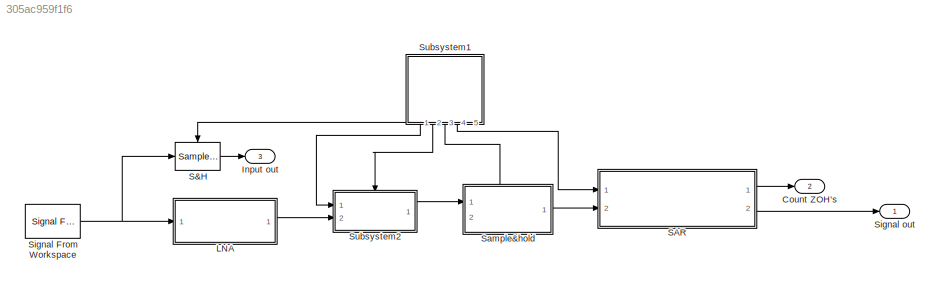
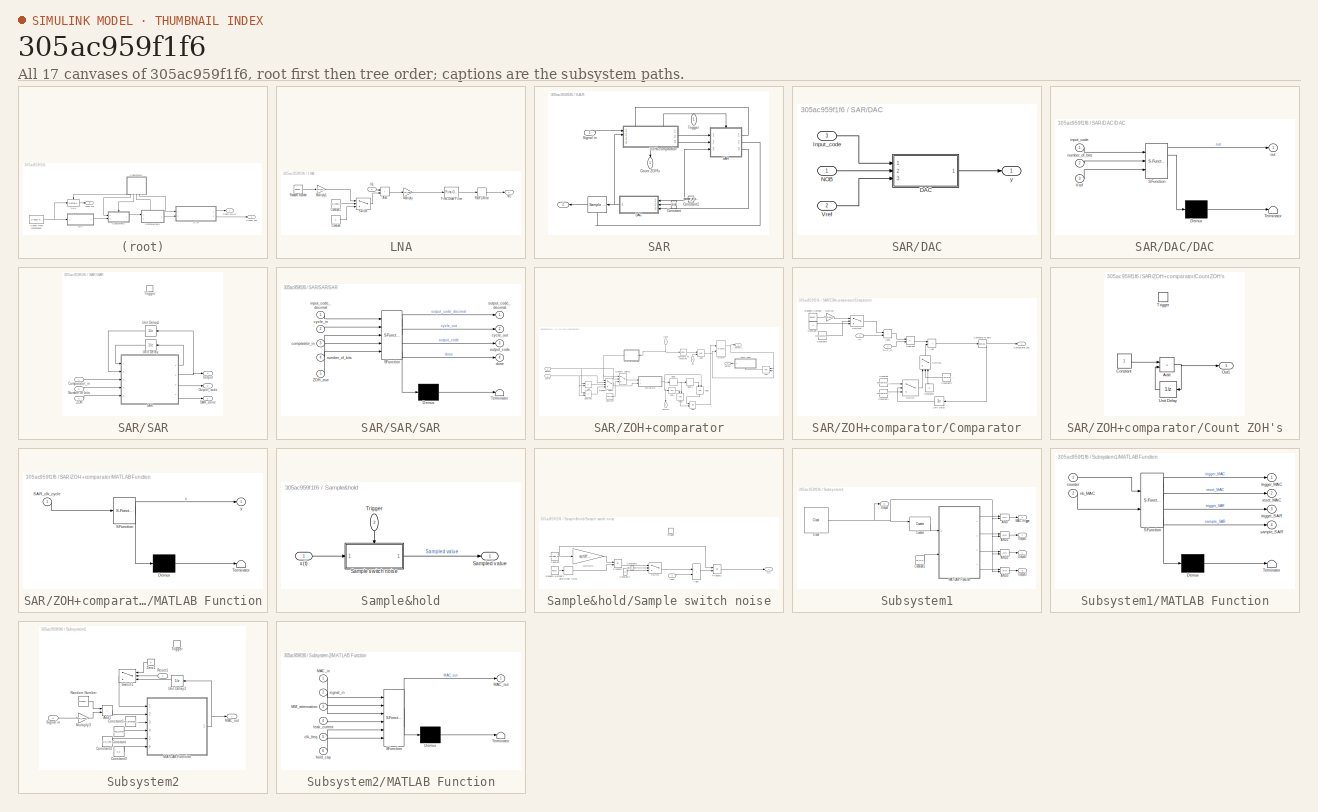
[diagram: thumbnail index - all 17 canvases of the model, root first then tree order]
MODEL slx_305ac959f1f6
KIND model
CONFIG AbsTol = auto
CONFIG EnableMultiTasking = off
CONFIG FixedStep = auto
CONFIG MaxStep = auto
CONFIG MinStep = auto
CONFIG RelTol = 1e-3
CONFIG SampleTimeConstraint = Unconstrained
CONFIG SolverName = VariableStepAuto
CONFIG StartTime = 0.0
CONFIG StopTime = 1
BLOCK [Outport] Count ZOH's
  Port = 2
BLOCK [Outport] Input out
  NameLocation = top
  Port = 3
BLOCK [SubSystem] LNA
  Ports = [1, 1]
  RequestExecContextInheritance = off
BLOCK [Sum] LNA/Add
  IconShape = rectangular
  Ports = [2, 1]
BLOCK [Constant] LNA/Constant
  Value = 0
BLOCK [Constant] LNA/Constant1
  Value = LNA_noise_on
BLOCK [Reference] LNA/First-Order Filter  REF=spsFirstOrderFilterLib/First-Order
Filter
  Ports = [1, 1]
  SourceBlock = spsFirstOrderFilterLib/First-Order\nFilter
  SourceProductBaseCode = PS
  SourceType = First-Order Filter
BLOCK [Inport] LNA/In1
BLOCK [Gain] LNA/Multiply
  Gain = LNA_gain
BLOCK [Gain] LNA/Multiply1
  Gain = LNA_input_referred_noise
BLOCK [RandomNumber] LNA/Random Number
  SampleTime = clk_period*(number_of_bits+1)
  Seed = noise_seed+8
BLOCK [RateLimiter] LNA/Rate Limiter
  FallingSlewLimit = -LNA_SR
  RisingSlewLimit = LNA_SR
  SampleTimeMode = inherited
BLOCK [Switch] LNA/Switch
  Criteria = u2 > Threshold
  InputSameDT = off
  SaturateOnIntegerOverflow = off
BLOCK [Outport] LNA/x(t)
BLOCK [Reference] S&H  REF=dspsigops/Sample
and Hold
  Ports = [1, 1, 0, 1]
  SourceBlock = dspsigops/Sample\nand Hold
  SourceProductName = DSP System Toolbox
  SourceType = Sample and Hold
BLOCK [SubSystem] SAR
  Ports = [2, 2]
  RequestExecContextInheritance = off
BLOCK [Outport] SAR/ 
  Port = 2
BLOCK [Reference] SAR/             REF=dspsigops/Sample
and Hold
  NameLocation = top
  Ports = [1, 1, 0, 1]
  SourceBlock = dspsigops/Sample\nand Hold
  SourceProductName = DSP System Toolbox
  SourceType = Sample and Hold
BLOCK [Constant] SAR/Constant
  NameLocation = top
  Value = Vref
BLOCK [Constant] SAR/Constant1
  NameLocation = top
  Value = number_of_bits
BLOCK [Outport] SAR/Count ZOH's
  NameLocation = left
BLOCK [SubSystem] SAR/DAC
  Ports = [3, 1]
  RequestExecContextInheritance = off
  TreatAsAtomicUnit = on
BLOCK [SubSystem] SAR/DAC/DAC
  ErrorFcn = Stateflow.Translate.translate
  PermitHierarchicalResolution = ExplicitOnly
  Ports = [3, 1]
  RequestExecContextInheritance = off
  SFBlockType = MATLAB Function
  TreatAsAtomicUnit = on
BLOCK [Demux] SAR/DAC/DAC/ Demux 
  Outputs = 1
  Ports = [1, 1]
BLOCK [S-Function] SAR/DAC/DAC/ SFunction 
  EnableBusSupport = on
  FunctionName = sf_sfun
  PortCounts = [3 2]
  Ports = [3, 2]
  SFcnIsStateOwnerBlock = off
  SFunctionDeploymentMode = off
  Tag = Stateflow S-Function 2
BLOCK [Terminator] SAR/DAC/DAC/ Terminator 
BLOCK [Inport] SAR/DAC/DAC/Vref
  Port = 3
BLOCK [Inport] SAR/DAC/DAC/input_code
BLOCK [Inport] SAR/DAC/DAC/number_of_bits
  Port = 2
BLOCK [Outport] SAR/DAC/DAC/out
BLOCK [Inport] SAR/DAC/Input_code
  Port = 3
BLOCK [Inport] SAR/DAC/NOB
BLOCK [Inport] SAR/DAC/Vref
  Port = 2
BLOCK [Outport] SAR/DAC/y
BLOCK [SubSystem] SAR/SAR
  Ports = [3, 3, 0, 1]
  RequestExecContextInheritance = off
  TreatAsAtomicUnit = on
BLOCK [Inport] SAR/SAR/Comparator_in
  LatchByDelayingOutsideSignal = on
BLOCK [Inport] SAR/SAR/Number of bits
  Port = 3
BLOCK [Outport] SAR/SAR/Output
BLOCK [Outport] SAR/SAR/Output_code
  InitialOutput = zeros(number_of_bits, 1)
  Port = 3
  VarSizeSig = Yes
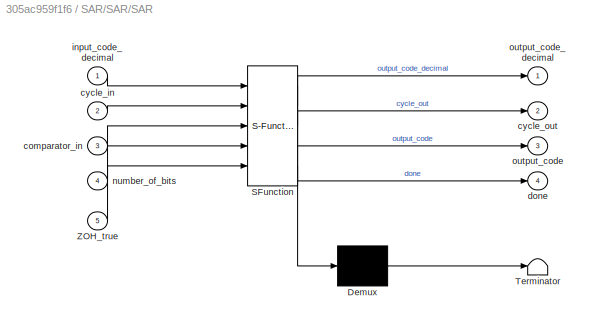
BLOCK [SubSystem] SAR/SAR/SAR
  ErrorFcn = Stateflow.Translate.translate
  PermitHierarchicalResolution = ExplicitOnly
  Ports = [5, 4]
  RequestExecContextInheritance = off
  SFBlockType = MATLAB Function
  TreatAsAtomicUnit = on
BLOCK [Demux] SAR/SAR/SAR/ Demux 
  Outputs = 1
  Ports = [1, 1]
BLOCK [S-Function] SAR/SAR/SAR/ SFunction 
  EnableBusSupport = on
  FunctionName = sf_sfun
  PortCounts = [5 5]
  Ports = [5, 5]
  SFcnIsStateOwnerBlock = off
  SFunctionDeploymentMode = off
  Tag = Stateflow S-Function 3
BLOCK [Terminator] SAR/SAR/SAR/ Terminator 
BLOCK [Inport] SAR/SAR/SAR/ZOH_true
  Port = 5
BLOCK [Inport] SAR/SAR/SAR/comparator_in
  Port = 3
BLOCK [Inport] SAR/SAR/SAR/cycle_in
  Port = 2
BLOCK [Outport] SAR/SAR/SAR/cycle_out
  Port = 2
BLOCK [Outport] SAR/SAR/SAR/done
  Port = 4
BLOCK [Inport] SAR/SAR/SAR/input_code_decimal
BLOCK [Inport] SAR/SAR/SAR/number_of_bits
  Port = 4
BLOCK [Outport] SAR/SAR/SAR/output_code
  Port = 3
BLOCK [Outport] SAR/SAR/SAR/output_code_decimal
BLOCK [Outport] SAR/SAR/SAR_done
  InitialOutput = 0
  Port = 2
BLOCK [TriggerPort] SAR/SAR/Trigger
  Ports = []
  StatesWhenEnabling = held
  VariantControl = Variant
BLOCK [UnitDelay] SAR/SAR/Unit Delay
  HasFrameUpgradeWarning = on
  SampleTime = -1
BLOCK [UnitDelay] SAR/SAR/Unit Delay1
  HasFrameUpgradeWarning = on
  NameLocation = top
  SampleTime = -1
BLOCK [Inport] SAR/SAR/ZOH
  LatchByDelayingOutsideSignal = on
  Port = 2
BLOCK [Inport] SAR/Signal in
  Port = 2
BLOCK [Inport] SAR/Trigger
  NameLocation = right
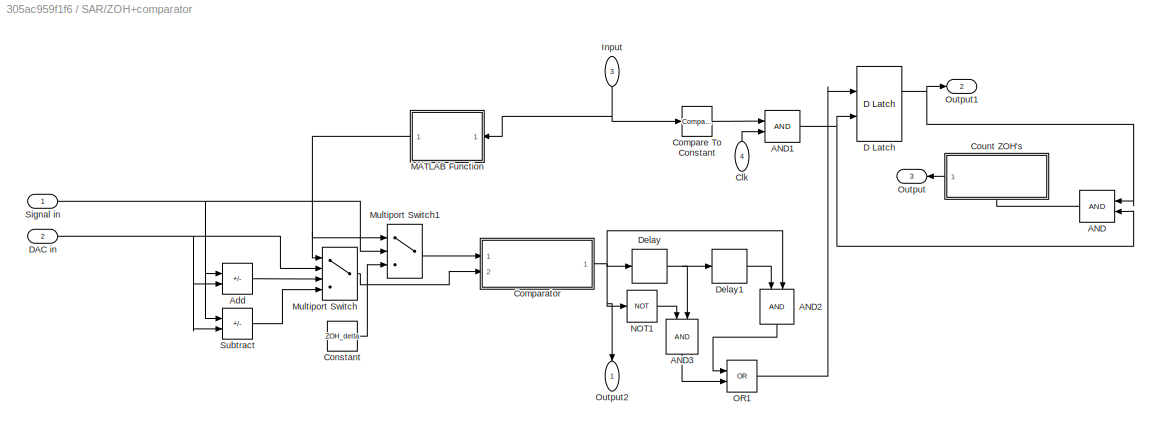
BLOCK [SubSystem] SAR/ZOH+comparator
  PortSchema = {"entries":[{"content":{"sides":[{"content":{"connectorIds":["In1","In2"]},"type":"ConnectorPlacement.EquallySpacedRectSide","uuid":"7512c97b-848f-4506-b4e4-df4323ddef76"},{"content":{"connectorIds":["Out1","Out2"],"side":"RIGHT"},"type":"ConnectorPlacement.EquallySpacedRectSide","uuid":"173ab639-376f-4392-8113-9f10a64ef5ba"},{"content":{"connectorIds":["In3","In4"],"side":"TOP"},"type":"Connector...<+558ch>
  Ports = [4, 3]
  RequestExecContextInheritance = off
BLOCK [Logic] SAR/ZOH+comparator/AND
  AllPortsSameDT = off
  IconShape = distinctive
  OutDataTypeStr = boolean
  Ports = [2, 1]
BLOCK [Logic] SAR/ZOH+comparator/AND1
  AllPortsSameDT = off
  IconShape = distinctive
  OutDataTypeStr = boolean
  Ports = [2, 1]
BLOCK [Logic] SAR/ZOH+comparator/AND2
  AllPortsSameDT = off
  IconShape = distinctive
  NameLocation = left
  OutDataTypeStr = boolean
  Ports = [2, 1]
BLOCK [Logic] SAR/ZOH+comparator/AND3
  AllPortsSameDT = off
  IconShape = distinctive
  NameLocation = left
  OutDataTypeStr = boolean
  Ports = [2, 1]
BLOCK [Sum] SAR/ZOH+comparator/Add
  IconShape = rectangular
  Inputs = +-
  Ports = [2, 1]
BLOCK [Inport] SAR/ZOH+comparator/Clk
  NameLocation = left
  Port = 4
BLOCK [SubSystem] SAR/ZOH+comparator/Comparator
  Ports = [2, 1]
  RequestExecContextInheritance = off
  TreatAsAtomicUnit = on
BLOCK [Sum] SAR/ZOH+comparator/Comparator/Add
  IconShape = rectangular
  Ports = [2, 1]
BLOCK [Sum] SAR/ZOH+comparator/Comparator/Add1
  IconShape = rectangular
  Ports = [2, 1]
BLOCK [Outport] SAR/ZOH+comparator/Comparator/Comparator_out
BLOCK [Reference] SAR/ZOH+comparator/Comparator/Compare To Zero  REF=simulink/Logic and Bit
Operations/Compare
To Zero
  Ports = [1, 1]
  SourceBlock = simulink/Logic and Bit\nOperations/Compare\nTo Zero
  SourceProductBaseCode = SL
  SourceType = Compare To Zero
BLOCK [Constant] SAR/ZOH+comparator/Comparator/Constant
  Value = comparator_high_offset
BLOCK [Constant] SAR/ZOH+comparator/Comparator/Constant1
  Value = comparator_low_offset
BLOCK [Constant] SAR/ZOH+comparator/Comparator/Constant2
  NameLocation = right
  Value = 0
BLOCK [Constant] SAR/ZOH+comparator/Comparator/Constant3
  Value = comparator_offset_on
BLOCK [Constant] SAR/ZOH+comparator/Comparator/Constant4
  Value = 0
BLOCK [Constant] SAR/ZOH+comparator/Comparator/Constant5
  Value = comparator_noise_on
BLOCK [Inport] SAR/ZOH+comparator/Comparator/DAC_in
  Port = 2
BLOCK [Gain] SAR/ZOH+comparator/Comparator/Multiply
  Gain = comparator_noise_rms
BLOCK [RandomNumber] SAR/ZOH+comparator/Comparator/Random Number
  SampleTime = 1/clk_freq
BLOCK [Sum] SAR/ZOH+comparator/Comparator/Subtract
  IconShape = rectangular
  Inputs = +-
  Ports = [2, 1]
BLOCK [Switch] SAR/ZOH+comparator/Comparator/Switch
  Criteria = u2 > Threshold
  InputSameDT = off
  SaturateOnIntegerOverflow = off
BLOCK [Switch] SAR/ZOH+comparator/Comparator/Switch1
  Criteria = u2 > Threshold
  InputSameDT = off
  NameLocation = right
  SaturateOnIntegerOverflow = off
BLOCK [Switch] SAR/ZOH+comparator/Comparator/Switch2
  Criteria = u2 > Threshold
  InputSameDT = off
  SaturateOnIntegerOverflow = off
BLOCK [UnitDelay] SAR/ZOH+comparator/Comparator/Unit Delay
  HasFrameUpgradeWarning = on
  SampleTime = -1
BLOCK [Inport] SAR/ZOH+comparator/Comparator/y(t)
BLOCK [Reference] SAR/ZOH+comparator/Compare To Constant  REF=simulink/Logic and Bit
Operations/Compare
To Constant
  Ports = [1, 1]
  SourceBlock = simulink/Logic and Bit\nOperations/Compare\nTo Constant
  SourceProductBaseCode = SL
  SourceType = Compare To Constant
BLOCK [Constant] SAR/ZOH+comparator/Constant
  Value = ZOH_delta
BLOCK [SubSystem] SAR/ZOH+comparator/Count ZOH's
  NameLocation = top
  Ports = [0, 1, 0, 1]
  RequestExecContextInheritance = off
BLOCK [Sum] SAR/ZOH+comparator/Count ZOH's/Add
  AccumDataTypeStr = double
  IconShape = rectangular
  OutDataTypeStr = double
  Ports = [2, 1]
BLOCK [Constant] SAR/ZOH+comparator/Count ZOH's/Constant
BLOCK [Outport] SAR/ZOH+comparator/Count ZOH's/Out1
BLOCK [TriggerPort] SAR/ZOH+comparator/Count ZOH's/Trigger
  PortDimensions = 1
  Ports = []
  StatesWhenEnabling = held
  VariantControl = Variant
BLOCK [UnitDelay] SAR/ZOH+comparator/Count ZOH's/Unit Delay
  HasFrameUpgradeWarning = on
  NameLocation = top
  SampleTime = -1
BLOCK [Reference] SAR/ZOH+comparator/D Latch  REF=simulink_extras/Flip Flops/D Latch
  Ports = [2, 2]
  SourceBlock = simulink_extras/Flip Flops/D Latch
  SourceProductBaseCode = SL
  SourceType = DLatch
BLOCK [Inport] SAR/ZOH+comparator/DAC in
  Port = 2
BLOCK [Delay] SAR/ZOH+comparator/Delay
  InputPortMap = u0
  Ports = [1, 1]
BLOCK [Delay] SAR/ZOH+comparator/Delay1
  InputPortMap = u0
  Ports = [1, 1]
BLOCK [Inport] SAR/ZOH+comparator/Input
  NameLocation = left
  Port = 3
BLOCK [SubSystem] SAR/ZOH+comparator/MATLAB Function
  ErrorFcn = Stateflow.Translate.translate
  NameLocation = top
  PermitHierarchicalResolution = ExplicitOnly
  Ports = [1, 1]
  RequestExecContextInheritance = off
  SFBlockType = MATLAB Function
  TreatAsAtomicUnit = on
BLOCK [Demux] SAR/ZOH+comparator/MATLAB Function/ Demux 
  Outputs = 1
  Ports = [1, 1]
BLOCK [S-Function] SAR/ZOH+comparator/MATLAB Function/ SFunction 
  EnableBusSupport = on
  FunctionName = sf_sfun
  PortCounts = [1 2]
  Ports = [1, 2]
  SFcnIsStateOwnerBlock = off
  SFunctionDeploymentMode = off
  Tag = Stateflow S-Function 1
BLOCK [Terminator] SAR/ZOH+comparator/MATLAB Function/ Terminator 
BLOCK [Inport] SAR/ZOH+comparator/MATLAB Function/SAR_clk_cycle
BLOCK [Outport] SAR/ZOH+comparator/MATLAB Function/y
BLOCK [MultiPortSwitch] SAR/ZOH+comparator/Multiport Switch
  InputSameDT = off
  Ports = [4, 1]
  SaturateOnIntegerOverflow = off
BLOCK [MultiPortSwitch] SAR/ZOH+comparator/Multiport Switch1
  DiagnosticForDefault = None
  InputSameDT = off
  Inputs = 2
  Ports = [3, 1]
  SaturateOnIntegerOverflow = off
BLOCK [Logic] SAR/ZOH+comparator/NOT1
  AllPortsSameDT = off
  IconShape = distinctive
  Operator = NOT
  OutDataTypeStr = boolean
  Ports = [1, 1]
BLOCK [Logic] SAR/ZOH+comparator/OR1
  AllPortsSameDT = off
  IconShape = distinctive
  Operator = OR
  OutDataTypeStr = boolean
  Ports = [2, 1]
BLOCK [Outport] SAR/ZOH+comparator/Output
  NameLocation = top
  Port = 3
BLOCK [Outport] SAR/ZOH+comparator/Output1
  Port = 2
BLOCK [Outport] SAR/ZOH+comparator/Output2
  NameLocation = left
BLOCK [Inport] SAR/ZOH+comparator/Signal in
BLOCK [Sum] SAR/ZOH+comparator/Subtract
  IconShape = rectangular
  Inputs = -+
  Ports = [2, 1]
BLOCK [SubSystem] Sample&hold
  PortSchema = {"entries":[{"content":{"sides":[{"content":{"connectorIds":["In1"]},"type":"ConnectorPlacement.EquallySpacedRectSide","uuid":"7dc7a4da-613e-4b0b-8b13-7686a16d7398"},{"content":{"connectorIds":["Out1"],"side":"RIGHT"},"type":"ConnectorPlacement.EquallySpacedRectSide","uuid":"45e05abc-e512-455b-8082-6639e5b5b38c"},{"content":{"connectorIds":["In2"],"side":"TOP"},"type":"ConnectorPlacement.EquallySp...<+389ch>
  Ports = [2, 1]
  RequestExecContextInheritance = off
BLOCK [SubSystem] Sample&hold/Sample switch noise
  Ports = [1, 1, 0, 1]
  RequestExecContextInheritance = off
  TreatAsAtomicUnit = on
BLOCK [Sum] Sample&hold/Sample switch noise/Add1
  IconShape = rectangular
  Ports = [2, 1]
BLOCK [Constant] Sample&hold/Sample switch noise/Constant
  Value = sampling_gain
BLOCK [Constant] Sample&hold/Sample switch noise/Constant1
  Value = 0
BLOCK [Constant] Sample&hold/Sample switch noise/Constant2
  Value = switch_noise_on
BLOCK [Inport] Sample&hold/Sample switch noise/Input
BLOCK [Gain] Sample&hold/Sample switch noise/Multiply1
  Gain = sqrt(k*T/(sampling_gain*Cf))
  OutDataTypeStr = Inherit: Same as input
BLOCK [Product] Sample&hold/Sample switch noise/Product1
  Ports = [2, 1]
BLOCK [Product] Sample&hold/Sample switch noise/Product2
  Ports = [2, 1]
BLOCK [RandomNumber] Sample&hold/Sample switch noise/Random Number1
  Seed = noise_seed+2
  Variance = switching_noise
BLOCK [Switch] Sample&hold/Sample switch noise/Switch
  Criteria = u2 > Threshold
  InputSameDT = off
  SaturateOnIntegerOverflow = off
BLOCK [TriggerPort] Sample&hold/Sample switch noise/Trigger
  Ports = []
  StatesWhenEnabling = held
  VariantControl = Variant
BLOCK [ZeroOrderHold] Sample&hold/Sample switch noise/Zero-Order Hold1
  SampleTime = -1
BLOCK [Outport] Sample&hold/Sample switch noise/y(t)
BLOCK [Outport] Sample&hold/Sampled value
BLOCK [Inport] Sample&hold/Trigger
  NameLocation = left
  Port = 2
BLOCK [Inport] Sample&hold/x(t)
BLOCK [Reference] Signal From Workspace  REF=dspsrcs4/Signal From
Workspace
  Ports = [0, 1]
  SourceBlock = dspsrcs4/Signal From\nWorkspace
  SourceProductBaseCode = DS
  SourceType = Signal From Workspace
BLOCK [Outport] Signal out
  NameLocation = top
BLOCK [SubSystem] Subsystem1
  NameLocation = left
  PortSchema = {"entries":[{"content":{"sides":[{"content":{"connectorIds":[]},"type":"ConnectorPlacement.EquallySpacedRectSide","uuid":"08b362f4-e51c-4c48-9795-383a666f9ced"},{"content":{"connectorIds":["Out1","Out2","Out3","Out4"],"side":"RIGHT"},"type":"ConnectorPlacement.EquallySpacedRectSide","uuid":"c1079507-a800-4a5f-bf86-70ea93d83d34"},{"content":{"connectorIds":["Out5"],"side":"TOP"},"type":"ConnectorPl...<+406ch>
  Ports = [0, 5]
  RequestExecContextInheritance = off
BLOCK [Logic] Subsystem1/AND
  AllPortsSameDT = off
  IconShape = distinctive
  OutDataTypeStr = boolean
  Ports = [2, 1]
BLOCK [Logic] Subsystem1/AND1
  AllPortsSameDT = off
  IconShape = distinctive
  OutDataTypeStr = boolean
  Ports = [2, 1]
BLOCK [Logic] Subsystem1/AND2
  AllPortsSameDT = off
  IconShape = distinctive
  OutDataTypeStr = boolean
  Ports = [2, 1]
BLOCK [Logic] Subsystem1/AND3
  AllPortsSameDT = off
  IconShape = distinctive
  OutDataTypeStr = boolean
  Ports = [2, 1]
BLOCK [Reference] Subsystem1/Clock  REF=simulink_extras/Flip Flops/Clock
  NameLocation = top
  Ports = [0, 1]
  SourceBlock = simulink_extras/Flip Flops/Clock
  SourceProductBaseCode = SL
  SourceType = Digital clock
BLOCK [Constant] Subsystem1/Constant1
  Value = nb_MAC
BLOCK [Reference] Subsystem1/Counter  REF=dspswit3/Counter
  Ports = [2, 1]
  SourceBlock = dspswit3/Counter
  SourceProductBaseCode = DS
  SourceType = Counter
BLOCK [Outport] Subsystem1/MAC trigger
  Port = 2
BLOCK [SubSystem] Subsystem1/MATLAB Function
  ErrorFcn = Stateflow.Translate.translate
  PermitHierarchicalResolution = ExplicitOnly
  Ports = [2, 4]
  RequestExecContextInheritance = off
  SFBlockType = MATLAB Function
  TreatAsAtomicUnit = on
BLOCK [Demux] Subsystem1/MATLAB Function/ Demux 
  Outputs = 1
  Ports = [1, 1]
BLOCK [S-Function] Subsystem1/MATLAB Function/ SFunction 
  EnableBusSupport = on
  FunctionName = sf_sfun
  PortCounts = [2 5]
  Ports = [2, 5]
  SFcnIsStateOwnerBlock = off
  SFunctionDeploymentMode = off
  Tag = Stateflow S-Function 4
BLOCK [Terminator] Subsystem1/MATLAB Function/ Terminator 
BLOCK [Inport] Subsystem1/MATLAB Function/counter
BLOCK [Inport] Subsystem1/MATLAB Function/nb_MAC
  Port = 2
BLOCK [Outport] Subsystem1/MATLAB Function/reset_MAC
  Port = 2
BLOCK [Outport] Subsystem1/MATLAB Function/sample_SAR
  Port = 4
BLOCK [Outport] Subsystem1/MATLAB Function/trigger_MAC
BLOCK [Outport] Subsystem1/MATLAB Function/trigger_SAR
  Port = 3
BLOCK [Outport] Subsystem1/Output
  Port = 5
BLOCK [Outport] Subsystem1/Output1
BLOCK [Outport] Subsystem1/Output2
  Port = 4
BLOCK [Outport] Subsystem1/Output3
  Port = 3
BLOCK [SubSystem] Subsystem2
  Ports = [2, 1, 0, 1]
  RequestExecContextInheritance = off
BLOCK [Sum] Subsystem2/Add1
  IconShape = rectangular
  Ports = [2, 1]
BLOCK [Constant] Subsystem2/Constant
  Value = leak_current
BLOCK [Constant] Subsystem2/Constant1
  Value = MM_attenuation_coeff
BLOCK [Constant] Subsystem2/Constant2
  Value = clk_freq
BLOCK [Constant] Subsystem2/Constant3
  Value = C2
BLOCK [Outport] Subsystem2/MAC_out
BLOCK [SubSystem] Subsystem2/MATLAB Function
  ErrorFcn = Stateflow.Translate.translate
  PermitHierarchicalResolution = ExplicitOnly
  Ports = [6, 1]
  RequestExecContextInheritance = off
  SFBlockType = MATLAB Function
  TreatAsAtomicUnit = on
BLOCK [Demux] Subsystem2/MATLAB Function/ Demux 
  Outputs = 1
  Ports = [1, 1]
BLOCK [S-Function] Subsystem2/MATLAB Function/ SFunction 
  EnableBusSupport = on
  FunctionName = sf_sfun
  PortCounts = [6 2]
  Ports = [6, 2]
  SFcnIsStateOwnerBlock = off
  SFunctionDeploymentMode = off
  Tag = Stateflow S-Function 5
BLOCK [Terminator] Subsystem2/MATLAB Function/ Terminator 
BLOCK [Inport] Subsystem2/MATLAB Function/MAC_in
BLOCK [Outport] Subsystem2/MATLAB Function/MAC_out
BLOCK [Inport] Subsystem2/MATLAB Function/MM_attenuation
  Port = 3
BLOCK [Inport] Subsystem2/MATLAB Function/clk_freq
  Port = 5
BLOCK [Inport] Subsystem2/MATLAB Function/hold_cap
  Port = 6
BLOCK [Inport] Subsystem2/MATLAB Function/leak_current
  Port = 4
BLOCK [Inport] Subsystem2/MATLAB Function/signal_in
  Port = 2
BLOCK [Gain] Subsystem2/Multiply3
  Gain = MM_incomplete_transfer_coeff
BLOCK [RandomNumber] Subsystem2/Random Number
  Seed = noise_seed+2398
  Variance = MM_sampling_noise
BLOCK [Inport] Subsystem2/Reset1
  NameLocation = top
BLOCK [Inport] Subsystem2/Signal in
  Port = 2
BLOCK [Switch] Subsystem2/Switch1
  Criteria = u2 > Threshold
  InputSameDT = off
  NameLocation = top
  SaturateOnIntegerOverflow = off
BLOCK [TriggerPort] Subsystem2/Trigger
  PortDimensions = 1
  Ports = []
  StatesWhenEnabling = held
  VariantControl = Variant
BLOCK [UnitDelay] Subsystem2/Unit Delay2
  HasFrameUpgradeWarning = on
  InitialCondition = 1
  NameLocation = top
  SampleTime = -1
BLOCK [Constant] Subsystem2/Zero1
  NameLocation = top
  OutDataTypeStr = Inherit: Inherit via back propagation
  Value = 0
LINE LNA/Add:1 -> LNA/Multiply:1
LINE LNA/Constant1:1 -> LNA/Switch:2
LINE LNA/Constant:1 -> LNA/Switch:3
LINE LNA/First-Order Filter:1 -> LNA/Rate Limiter:1
LINE LNA/In1:1 -> LNA/Add:1
LINE LNA/Multiply1:1 -> LNA/Switch:1
LINE LNA/Multiply:1 -> LNA/First-Order Filter:1
LINE LNA/Random Number:1 -> LNA/Multiply1:1
LINE LNA/Rate Limiter:1 -> LNA/x(t):1
LINE LNA/Switch:1 -> LNA/Add:2
LINE LNA:1 -> Subsystem2:2
LINE S&H:1 -> Input out:1
LINE SAR/           :1 -> SAR/ :1
NET SAR/Constant1:1 -> SAR/DAC:1, SAR/SAR:3
LINE SAR/Constant:1 -> SAR/DAC:2
LINE SAR/DAC/DAC:1 -> SAR/DAC/y:1
LINE SAR/DAC/Input_code:1 -> SAR/DAC/DAC:1
LINE SAR/DAC/NOB:1 -> SAR/DAC/DAC:2
LINE SAR/DAC/Vref:1 -> SAR/DAC/DAC:3
NET SAR/DAC:1 -> SAR/           :1, SAR/ZOH+comparator:2
LINE SAR/SAR/Comparator_in:1 -> SAR/SAR/SAR:3
LINE SAR/SAR/Number of bits:1 -> SAR/SAR/SAR:4
LINE SAR/SAR/SAR:1 -> SAR/SAR/Unit Delay:1
NET SAR/SAR/SAR:2 -> SAR/SAR/Output:1, SAR/SAR/Unit Delay1:1
LINE SAR/SAR/SAR:3 -> SAR/SAR/Output_code:1
LINE SAR/SAR/SAR:4 -> SAR/SAR/SAR_done:1
LINE SAR/SAR/Unit Delay1:1 -> SAR/SAR/SAR:2
LINE SAR/SAR/Unit Delay:1 -> SAR/SAR/SAR:1
LINE SAR/SAR/ZOH:1 -> SAR/SAR/SAR:5
LINE SAR/SAR:1 -> SAR/ZOH+comparator:3
LINE SAR/SAR:2 -> SAR/           :trigger
LINE SAR/SAR:3 -> SAR/DAC:3
LINE SAR/Signal in:1 -> SAR/ZOH+comparator:1
NET SAR/Trigger:1 -> SAR/SAR:trigger, SAR/ZOH+comparator:4
NET SAR/ZOH+comparator/AND1:1 -> SAR/ZOH+comparator/AND:2, SAR/ZOH+comparator/D Latch:2
LINE SAR/ZOH+comparator/AND2:1 -> SAR/ZOH+comparator/OR1:1
LINE SAR/ZOH+comparator/AND3:1 -> SAR/ZOH+comparator/OR1:2
LINE SAR/ZOH+comparator/AND:1 -> SAR/ZOH+comparator/Count ZOH's:trigger
LINE SAR/ZOH+comparator/Add:1 -> SAR/ZOH+comparator/Multiport Switch:3
LINE SAR/ZOH+comparator/Clk:1 -> SAR/ZOH+comparator/AND1:2
LINE SAR/ZOH+comparator/Comparator/Add1:1 -> SAR/ZOH+comparator/Comparator/Subtract:1
LINE SAR/ZOH+comparator/Comparator/Add:1 -> SAR/ZOH+comparator/Comparator/Compare To Zero:1
NET SAR/ZOH+comparator/Comparator/Compare To Zero:1 -> SAR/ZOH+comparator/Comparator/Comparator_out:1, SAR/ZOH+comparator/Comparator/Unit Delay:1
LINE SAR/ZOH+comparator/Comparator/Constant1:1 -> SAR/ZOH+comparator/Comparator/Switch:3
LINE SAR/ZOH+comparator/Comparator/Constant2:1 -> SAR/ZOH+comparator/Comparator/Switch1:3
LINE SAR/ZOH+comparator/Comparator/Constant3:1 -> SAR/ZOH+comparator/Comparator/Switch1:2
LINE SAR/ZOH+comparator/Comparator/Constant4:1 -> SAR/ZOH+comparator/Comparator/Switch2:3
LINE SAR/ZOH+comparator/Comparator/Constant5:1 -> SAR/ZOH+comparator/Comparator/Switch2:2
LINE SAR/ZOH+comparator/Comparator/Constant:1 -> SAR/ZOH+comparator/Comparator/Switch:1
LINE SAR/ZOH+comparator/Comparator/DAC_in:1 -> SAR/ZOH+comparator/Comparator/Subtract:2
LINE SAR/ZOH+comparator/Comparator/Multiply:1 -> SAR/ZOH+comparator/Comparator/Switch2:1
LINE SAR/ZOH+comparator/Comparator/Random Number:1 -> SAR/ZOH+comparator/Comparator/Multiply:1
LINE SAR/ZOH+comparator/Comparator/Subtract:1 -> SAR/ZOH+comparator/Comparator/Add:1
LINE SAR/ZOH+comparator/Comparator/Switch1:1 -> SAR/ZOH+comparator/Comparator/Add:2
LINE SAR/ZOH+comparator/Comparator/Switch2:1 -> SAR/ZOH+comparator/Comparator/Add1:1
LINE SAR/ZOH+comparator/Comparator/Switch:1 -> SAR/ZOH+comparator/Comparator/Switch1:1
LINE SAR/ZOH+comparator/Comparator/Unit Delay:1 -> SAR/ZOH+comparator/Comparator/Switch:2
LINE SAR/ZOH+comparator/Comparator/y(t):1 -> SAR/ZOH+comparator/Comparator/Add1:2
NET SAR/ZOH+comparator/Comparator:1 -> SAR/ZOH+comparator/AND2:2, SAR/ZOH+comparator/Delay:1, SAR/ZOH+comparator/NOT1:1, SAR/ZOH+comparator/Output2:1
LINE SAR/ZOH+comparator/Compare To Constant:1 -> SAR/ZOH+comparator/AND1:1
LINE SAR/ZOH+comparator/Constant:1 -> SAR/ZOH+comparator/Multiport Switch1:3
NET SAR/ZOH+comparator/Count ZOH's/Add:1 -> SAR/ZOH+comparator/Count ZOH's/Out1:1, SAR/ZOH+comparator/Count ZOH's/Unit Delay:1
LINE SAR/ZOH+comparator/Count ZOH's/Constant:1 -> SAR/ZOH+comparator/Count ZOH's/Add:1
LINE SAR/ZOH+comparator/Count ZOH's/Unit Delay:1 -> SAR/ZOH+comparator/Count ZOH's/Add:2
LINE SAR/ZOH+comparator/Count ZOH's:1 -> SAR/ZOH+comparator/Output:1
NET SAR/ZOH+comparator/D Latch:1 -> SAR/ZOH+comparator/AND:1, SAR/ZOH+comparator/Output1:1
NET SAR/ZOH+comparator/DAC in:1 -> SAR/ZOH+comparator/Add:2, SAR/ZOH+comparator/Multiport Switch:2, SAR/ZOH+comparator/Subtract:2
LINE SAR/ZOH+comparator/Delay1:1 -> SAR/ZOH+comparator/AND2:1
NET SAR/ZOH+comparator/Delay:1 -> SAR/ZOH+comparator/AND3:2, SAR/ZOH+comparator/Delay1:1
NET SAR/ZOH+comparator/Input:1 -> SAR/ZOH+comparator/Compare To Constant:1, SAR/ZOH+comparator/MATLAB Function:1
NET SAR/ZOH+comparator/MATLAB Function:1 -> SAR/ZOH+comparator/Multiport Switch1:1, SAR/ZOH+comparator/Multiport Switch:1
LINE SAR/ZOH+comparator/Multiport Switch1:1 -> SAR/ZOH+comparator/Comparator:1
LINE SAR/ZOH+comparator/Multiport Switch:1 -> SAR/ZOH+comparator/Comparator:2
LINE SAR/ZOH+comparator/NOT1:1 -> SAR/ZOH+comparator/AND3:1
LINE SAR/ZOH+comparator/OR1:1 -> SAR/ZOH+comparator/D Latch:1
NET SAR/ZOH+comparator/Signal in:1 -> SAR/ZOH+comparator/Add:1, SAR/ZOH+comparator/Multiport Switch1:2, SAR/ZOH+comparator/Subtract:1
LINE SAR/ZOH+comparator/Subtract:1 -> SAR/ZOH+comparator/Multiport Switch:4
LINE SAR/ZOH+comparator:1 -> SAR/SAR:1
LINE SAR/ZOH+comparator:2 -> SAR/SAR:2
LINE SAR/ZOH+comparator:3 -> SAR/Count ZOH's:1
LINE SAR:1 -> Count ZOH's:1
LINE SAR:2 -> Signal out:1
LINE Sample&hold/Sample switch noise/Add1:1 -> Sample&hold/Sample switch noise/Product2:2
LINE Sample&hold/Sample switch noise/Constant1:1 -> Sample&hold/Sample switch noise/Switch:3
LINE Sample&hold/Sample switch noise/Constant2:1 -> Sample&hold/Sample switch noise/Switch:2
NET Sample&hold/Sample switch noise/Constant:1 -> Sample&hold/Sample switch noise/Multiply1:1, Sample&hold/Sample switch noise/Product2:1
LINE Sample&hold/Sample switch noise/Input:1 -> Sample&hold/Sample switch noise/Add1:2
LINE Sample&hold/Sample switch noise/Multiply1:1 -> Sample&hold/Sample switch noise/Product1:1
LINE Sample&hold/Sample switch noise/Product1:1 -> Sample&hold/Sample switch noise/Switch:1
LINE Sample&hold/Sample switch noise/Product2:1 -> Sample&hold/Sample switch noise/y(t):1
LINE Sample&hold/Sample switch noise/Random Number1:1 -> Sample&hold/Sample switch noise/Zero-Order Hold1:1
LINE Sample&hold/Sample switch noise/Switch:1 -> Sample&hold/Sample switch noise/Add1:1
LINE Sample&hold/Sample switch noise/Zero-Order Hold1:1 -> Sample&hold/Sample switch noise/Product1:2
LINE Sample&hold/Sample switch noise:1 -> Sample&hold/Sampled value:1
LINE Sample&hold/Trigger:1 -> Sample&hold/Sample switch noise:trigger
LINE Sample&hold/x(t):1 -> Sample&hold/Sample switch noise:1
LINE Sample&hold:1 -> SAR:2
NET Signal From Workspace:1 -> LNA:1, S&H:1
LINE Subsystem1/AND1:1 -> Subsystem1/Output1:1
LINE Subsystem1/AND2:1 -> Subsystem1/Output2:1
LINE Subsystem1/AND3:1 -> Subsystem1/Output3:1
LINE Subsystem1/AND:1 -> Subsystem1/MAC trigger:1
NET Subsystem1/Clock:1 -> Subsystem1/AND1:2, Subsystem1/AND2:2, Subsystem1/AND3:2, Subsystem1/AND:2, Subsystem1/Counter:1, Subsystem1/Output:1
LINE Subsystem1/Constant1:1 -> Subsystem1/MATLAB Function:2
LINE Subsystem1/Counter:1 -> Subsystem1/MATLAB Function:1
LINE Subsystem1/MATLAB Function:1 -> Subsystem1/AND:1
LINE Subsystem1/MATLAB Function:2 -> Subsystem1/AND1:1
LINE Subsystem1/MATLAB Function:3 -> Subsystem1/AND2:1
LINE Subsystem1/MATLAB Function:4 -> Subsystem1/AND3:1
LINE Subsystem1:1 -> Subsystem2:1
LINE Subsystem1:2 -> Subsystem2:trigger
LINE Subsystem1:3 -> Sample&hold:2
LINE Subsystem1:4 -> SAR:1
LINE Subsystem1:5 -> S&H:trigger
LINE Subsystem2/Add1:1 -> Subsystem2/MATLAB Function:2
LINE Subsystem2/Constant1:1 -> Subsystem2/MATLAB Function:3
LINE Subsystem2/Constant2:1 -> Subsystem2/MATLAB Function:5
LINE Subsystem2/Constant3:1 -> Subsystem2/MATLAB Function:6
LINE Subsystem2/Constant:1 -> Subsystem2/MATLAB Function:4
NET Subsystem2/MATLAB Function:1 -> Subsystem2/MAC_out:1, Subsystem2/Unit Delay2:1
LINE Subsystem2/Multiply3:1 -> Subsystem2/Add1:2
LINE Subsystem2/Random Number:1 -> Subsystem2/Add1:1
LINE Subsystem2/Reset1:1 -> Subsystem2/Switch1:2
LINE Subsystem2/Signal in:1 -> Subsystem2/Multiply3:1
LINE Subsystem2/Switch1:1 -> Subsystem2/MATLAB Function:1
LINE Subsystem2/Unit Delay2:1 -> Subsystem2/Switch1:3
LINE Subsystem2/Zero1:1 -> Subsystem2/Switch1:1
LINE Subsystem2:1 -> Sample&hold:1
note: NET lines group one-source signal fan-out (src -> all destinations, sorted); 1:1 wires keep LINE
CHART SAR/ZOH+comparator/MATLAB Function states=1 transitions=1
  STATE_LABEL 'eML_blk_kernel()'
  STATE_LABEL 'SCRIPT:\nfunction y = fcn(SAR_clk_cycle)\n    if (SAR_clk_cycle)==0\n        y = 2;\n    elseif (SAR_clk_cycle)==1\n        y=3;\n    else\n        y=1;\n    end\nend\n'
CHART SAR/DAC/DAC states=1 transitions=1
  STATE_LABEL 'eML_blk_kernel()'
  STATE_LABEL "SCRIPT:\nfunction out = fcn(input_code, number_of_bits, Vref)\nout = Vref/(2^number_of_bits) * (bi2de(input_code.', 'left-msb'));\nend\n\n\n"
CHART SAR/SAR/SAR states=1 transitions=1
  STATE_LABEL 'eML_blk_kernel()'
  STATE_LABEL "SCRIPT:\nfunction [output_code_decimal, cycle_out, output_code, done] = fcn(input_code_decimal, cycle_in, comparator_in, number_of_bits, ZOH_true)\n\n    input_code = de2bi(input_code_decimal, 'left-msb');\n    output_code = [zeros(number_of_bits-size(input_code.',1),1); input_code.'];\n    cycle_out = cycle_in + 1;\n    done = 0;\n\n    if (cycle_in < 2)\n        \n        % Wait for ZOH to be determined\n ...<+850ch>"
CHART Subsystem1/MATLAB Function states=1 transitions=1
  STATE_LABEL 'eML_blk_kernel()'
  STATE_LABEL 'SCRIPT:\nfunction [trigger_MAC, reset_MAC, trigger_SAR, sample_SAR] = control_logic(counter, nb_MAC)\n\n    trigger_MAC = 0;\n    reset_MAC = 0;\n    trigger_SAR = 0;\n    sample_SAR = 0;\n\n    if (counter <= nb_MAC-1) \n        trigger_MAC = 1;\n        \n        if (counter == 0)\n            reset_MAC = 1;\n        end\n        \n    elseif (counter == nb_MAC)\n        sample_SAR = 1;\n        \n    else\n      ...<+31ch>'
CHART Subsystem2/MATLAB Function states=1 transitions=1
  STATE_LABEL 'eML_blk_kernel()'
  STATE_LABEL 'SCRIPT:\nfunction MAC_out = fcn(MAC_in, signal_in, MM_attenuation, leak_current, clk_freq, hold_cap)\n\nMAC_out = signal_in + MM_attenuation*MAC_in;\nMAC_out = max(0,MAC_out - leak_current/(clk_freq*hold_cap));\n\nend\n\n'
CHART  states=0 transitions=0
CHART  states=0 transitions=0
CHART  states=0 transitions=0
CHART  states=0 transitions=0
CHART  states=0 transitions=0
